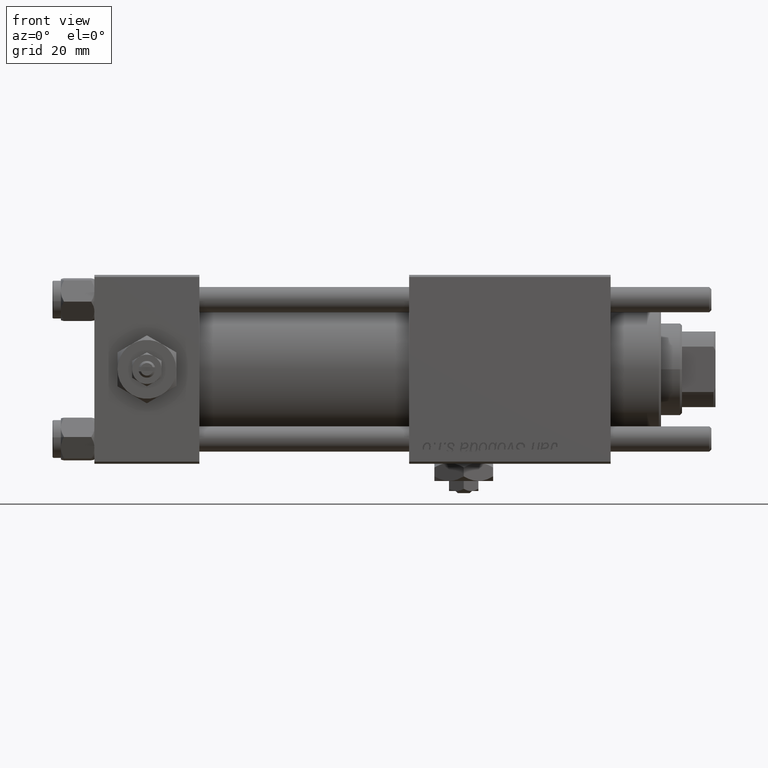
[diagram: clean part render]
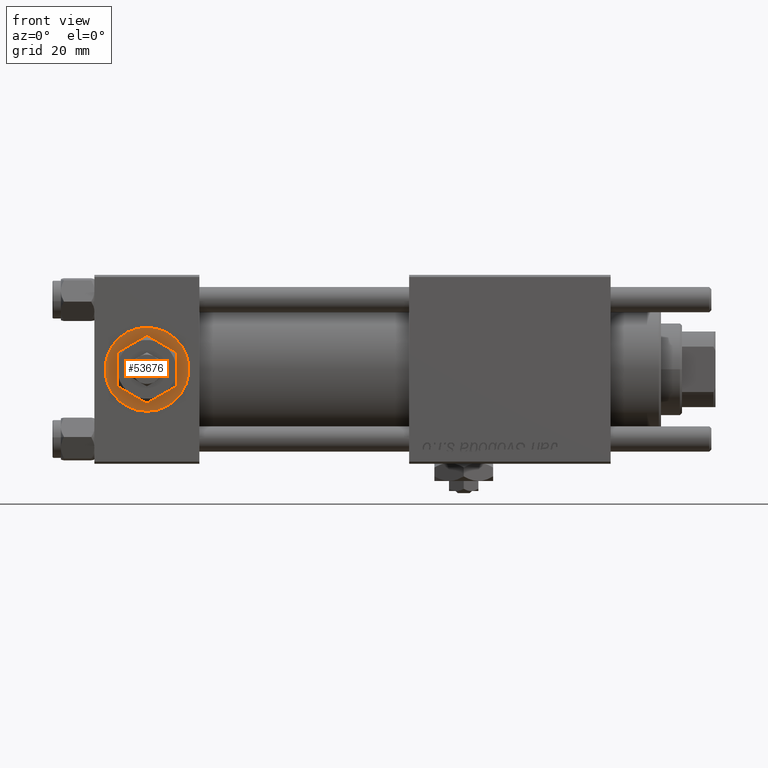
[diagram: same view with one face highlighted and labeled with its STEP entity id]
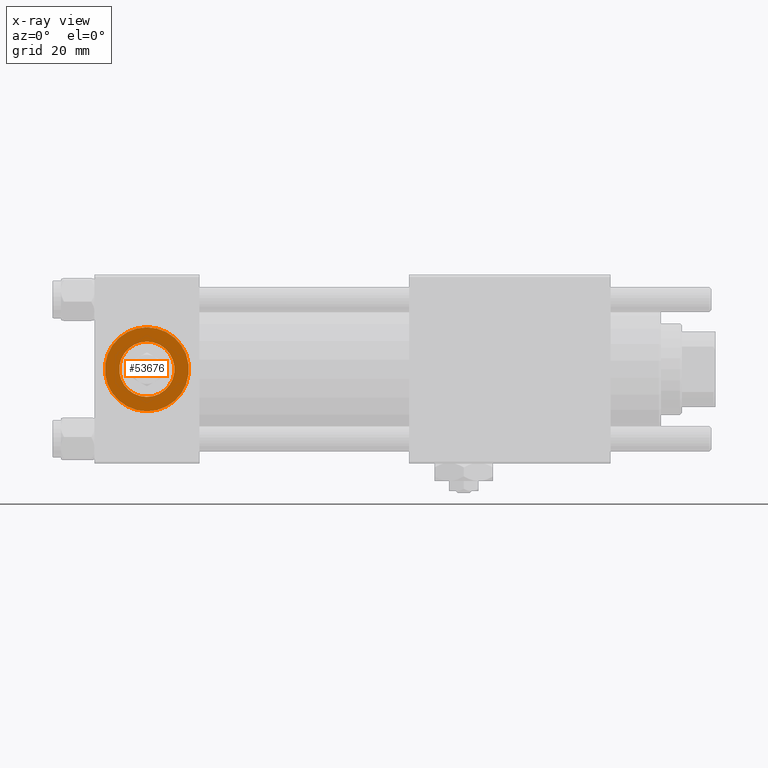
[diagram: x-ray of the same camera — body ghosted, the highlighted face saturated]
A machine part, front view. The second image highlights one B-rep face of the part: STEP entity #53676.
The next image is the same camera in x-ray: the body ghosted, the highlighted face saturated — about 0% of this face is hidden behind the body in this view.
In plain terms, the highlighted planar face has unit normal (0, -1, -0).
Its self-contained STEP definition (entity closure, byte-faithful):
#746 = EDGE_CURVE ( 'NONE', #28929, #16283, #14370, .T. ) ;
#1185 = DIRECTION ( 'NONE',  ( 0.000000000000000000, 0.000000000000000000, -1.000000000000000000 ) ) ;
#1362 = VERTEX_POINT ( 'NONE', #10548 ) ;
#1559 = DIRECTION ( 'NONE',  ( 0.000000000000000000, 0.000000000000000000, -1.000000000000000000 ) ) ;
#1790 = AXIS2_PLACEMENT_3D ( 'NONE', #20650, #10584, #43533 ) ;
#2313 = ORIENTED_EDGE ( 'NONE', *, *, #15441, .T. ) ;
#4068 = ORIENTED_EDGE ( 'NONE', *, *, #34678, .T. ) ;
#5342 = DIRECTION ( 'NONE',  ( 0.000000000000000000, -1.000000000000000000, -8.673617379884036705E-17 ) ) ;
#10548 = CARTESIAN_POINT ( 'NONE',  ( 12.50000000000000000, -22.30000000000000071, -9.999999999999996447 ) ) ;
#10584 = DIRECTION ( 'NONE',  ( 0.000000000000000000, -1.000000000000000000, -8.673617379884036705E-17 ) ) ;
#11094 = CARTESIAN_POINT ( 'NONE',  ( 12.50000000000000000, -22.30000000000000071, -6.579999999999998295 ) ) ;
#14370 = CIRCLE ( 'NONE', #17204, 6.579999999999998295 ) ;
#15441 = EDGE_CURVE ( 'NONE', #1362, #27377, #53591, .T. ) ;
#15619 = PLANE ( 'NONE',  #1790 ) ;
#16283 = VERTEX_POINT ( 'NONE', #18111 ) ;
#17204 = AXIS2_PLACEMENT_3D ( 'NONE', #19301, #5342, #1185 ) ;
#18111 = CARTESIAN_POINT ( 'NONE',  ( 12.50000000000000000, -22.30000000000000071, 6.579999999999998295 ) ) ;
#18367 = CARTESIAN_POINT ( 'NONE',  ( 12.50000000000000178, -22.30000000000000071, 9.999999999999996447 ) ) ;
#19129 = ORIENTED_EDGE ( 'NONE', *, *, #30467, .F. ) ;
#19301 = CARTESIAN_POINT ( 'NONE',  ( 12.50000000000000000, -22.30000000000000071, 1.734723475976808635E-17 ) ) ;
#20650 = CARTESIAN_POINT ( 'NONE',  ( 12.50000000000000000, -22.30000000000000071, 1.734723475976807403E-17 ) ) ;
#23735 = ORIENTED_EDGE ( 'NONE', *, *, #746, .F. ) ;
#23808 = CIRCLE ( 'NONE', #46578, 9.999999999999996447 ) ;
#27377 = VERTEX_POINT ( 'NONE', #18367 ) ;
#28319 = DIRECTION ( 'NONE',  ( 0.000000000000000000, -1.000000000000000000, -8.673617379884036705E-17 ) ) ;
#28684 = EDGE_LOOP ( 'NONE', ( #2313, #4068 ) ) ;
#28929 = VERTEX_POINT ( 'NONE', #11094 ) ;
#29698 = CARTESIAN_POINT ( 'NONE',  ( 12.50000000000000000, -22.30000000000000071, 1.734723475976807403E-17 ) ) ;
#30467 = EDGE_CURVE ( 'NONE', #16283, #28929, #57793, .T. ) ;
#34678 = EDGE_CURVE ( 'NONE', #27377, #1362, #23808, .T. ) ;
#35400 = CARTESIAN_POINT ( 'NONE',  ( 12.50000000000000000, -22.30000000000000071, 1.734723475976808635E-17 ) ) ;
#35986 = DIRECTION ( 'NONE',  ( 0.000000000000000000, 0.000000000000000000, -1.000000000000000000 ) ) ;
#38306 = DIRECTION ( 'NONE',  ( 0.000000000000000000, -1.000000000000000000, -8.673617379884036705E-17 ) ) ;
#39354 = AXIS2_PLACEMENT_3D ( 'NONE', #51083, #38306, #41585 ) ;
#41585 = DIRECTION ( 'NONE',  ( 0.000000000000000000, 0.000000000000000000, -1.000000000000000000 ) ) ;
#43533 = DIRECTION ( 'NONE',  ( 0.000000000000000000, 8.673617379884036705E-17, -1.000000000000000000 ) ) ;
#46578 = AXIS2_PLACEMENT_3D ( 'NONE', #29698, #28319, #1559 ) ;
#50406 = FACE_BOUND ( 'NONE', #57948, .T. ) ;
#51083 = CARTESIAN_POINT ( 'NONE',  ( 12.50000000000000000, -22.30000000000000071, 1.734723475976807403E-17 ) ) ;
#52119 = AXIS2_PLACEMENT_3D ( 'NONE', #35400, #54112, #35986 ) ;
#53591 = CIRCLE ( 'NONE', #39354, 9.999999999999996447 ) ;
#53676 = ADVANCED_FACE ( 'NONE', ( #50406, #56044 ), #15619, .T. ) ;
#54112 = DIRECTION ( 'NONE',  ( 0.000000000000000000, -1.000000000000000000, -8.673617379884036705E-17 ) ) ;
#56044 = FACE_OUTER_BOUND ( 'NONE', #28684, .T. ) ;
#57793 = CIRCLE ( 'NONE', #52119, 6.579999999999998295 ) ;
#57948 = EDGE_LOOP ( 'NONE', ( #23735, #19129 ) ) ;